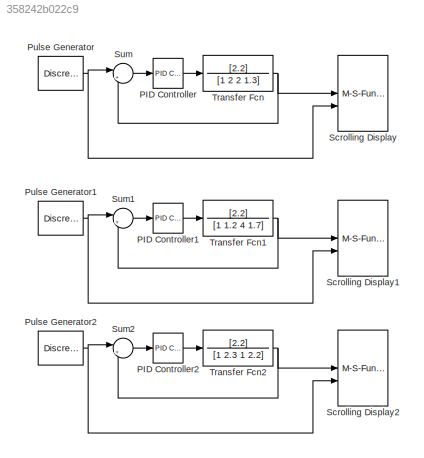
MODEL mdl_358242b022c9
KIND model
CONFIG AbsTol = auto
CONFIG EnableMultiTasking = on
CONFIG FixedStep = auto
CONFIG MaxStep = auto
CONFIG MinStep = auto
CONFIG RelTol = 1e-3
CONFIG SampleTimeConstraint = Unconstrained
CONFIG SolverName = ode45
CONFIG StartTime = 0.0
CONFIG StopTime = 200
BLOCK [Reference] PID Controller  REF=simulink_need_slupdate/PID Controller
  SourceBlock = simulink_need_slupdate/PID Controller
  SourceType = PID Controller
BLOCK [Reference] PID Controller1  REF=simulink_need_slupdate/PID Controller
  SourceBlock = simulink_need_slupdate/PID Controller
  SourceType = PID Controller
BLOCK [Reference] PID Controller2  REF=simulink_need_slupdate/PID Controller
  SourceBlock = simulink_need_slupdate/PID Controller
  SourceType = PID Controller
BLOCK [DiscretePulseGenerator] Pulse Generator
  Amplitude = 10
  Period = 30
  PulseType = Time based
  PulseWidth = 50
BLOCK [DiscretePulseGenerator] Pulse Generator1
  Amplitude = 0.1
  Period = 30
  PulseType = Time based
  PulseWidth = 50
BLOCK [DiscretePulseGenerator] Pulse Generator2
  Period = 30
  PulseType = Time based
  PulseWidth = 50
BLOCK [M-S-Function] Scrolling Display
  FunctionName = sfun_scroll
  Parameters = Ts,Frame_Size,Update_Delay,y_lim,setp
BLOCK [M-S-Function] Scrolling Display1
  FunctionName = sfun_scroll
  Parameters = Ts,Frame_Size,Update_Delay,y_lim,setp
BLOCK [M-S-Function] Scrolling Display2
  FunctionName = sfun_scroll
  Parameters = Ts,Frame_Size,Update_Delay,y_lim,setp
BLOCK [Sum] Sum
  Inputs = |+-
BLOCK [Sum] Sum1
  Inputs = |+-
BLOCK [Sum] Sum2
  Inputs = |+-
BLOCK [TransferFcn] Transfer Fcn
  Denominator = [1 2 2 1.3]
  Numerator = [2.2]
BLOCK [TransferFcn] Transfer Fcn1
  Denominator = [1 1.2 4 1.7]
  Numerator = [2.2]
BLOCK [TransferFcn] Transfer Fcn2
  Denominator = [1 2.3 1 2.2]
  Numerator = [2.2]
LINE PID Controller1:1 -> Transfer Fcn1:1
LINE PID Controller2:1 -> Transfer Fcn2:1
LINE PID Controller:1 -> Transfer Fcn:1
NET Pulse Generator1:1 -> Scrolling Display1:2, Sum1:1
NET Pulse Generator2:1 -> Scrolling Display2:2, Sum2:1
NET Pulse Generator:1 -> Scrolling Display:2, Sum:1
LINE Sum1:1 -> PID Controller1:1
LINE Sum2:1 -> PID Controller2:1
LINE Sum:1 -> PID Controller:1
NET Transfer Fcn1:1 -> Scrolling Display1:1, Sum1:2
NET Transfer Fcn2:1 -> Scrolling Display2:1, Sum2:2
NET Transfer Fcn:1 -> Scrolling Display:1, Sum:2
note: NET lines group one-source signal fan-out (src -> all destinations, sorted); 1:1 wires keep LINE
